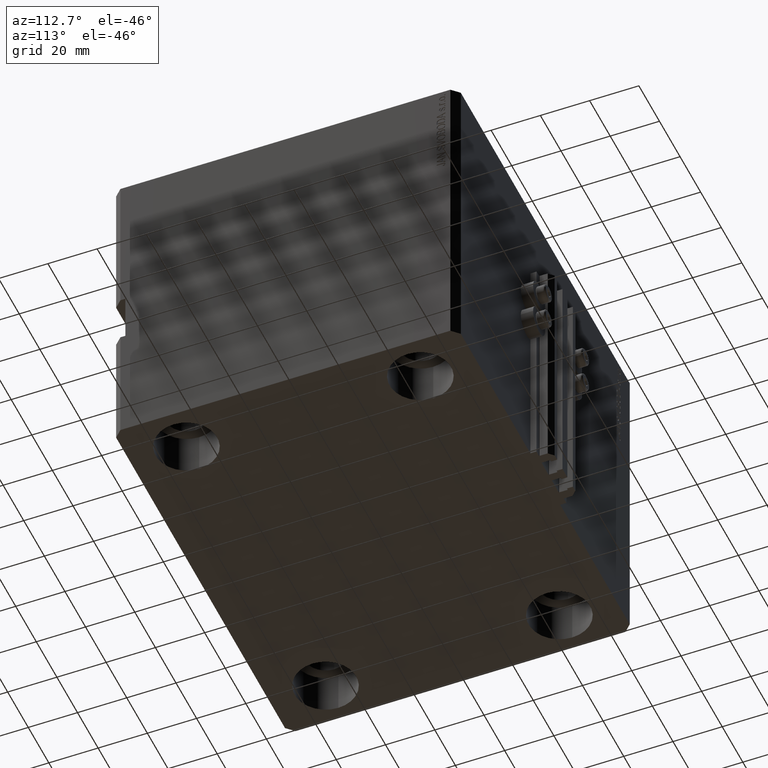
[diagram: clean part render]
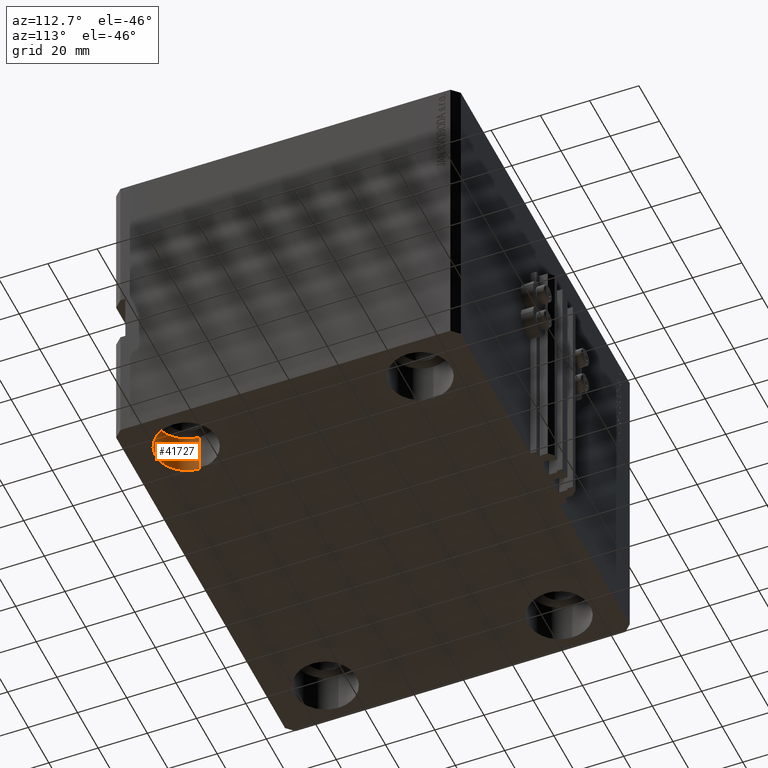
[diagram: same view with one face highlighted and labeled with its STEP entity id]
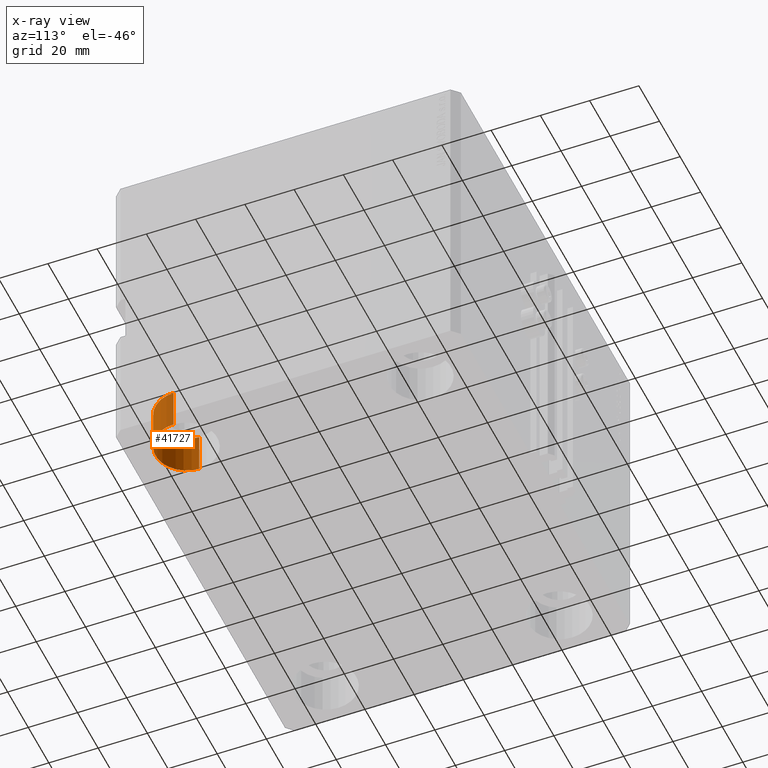
[diagram: x-ray of the same camera — body ghosted, the highlighted face saturated]
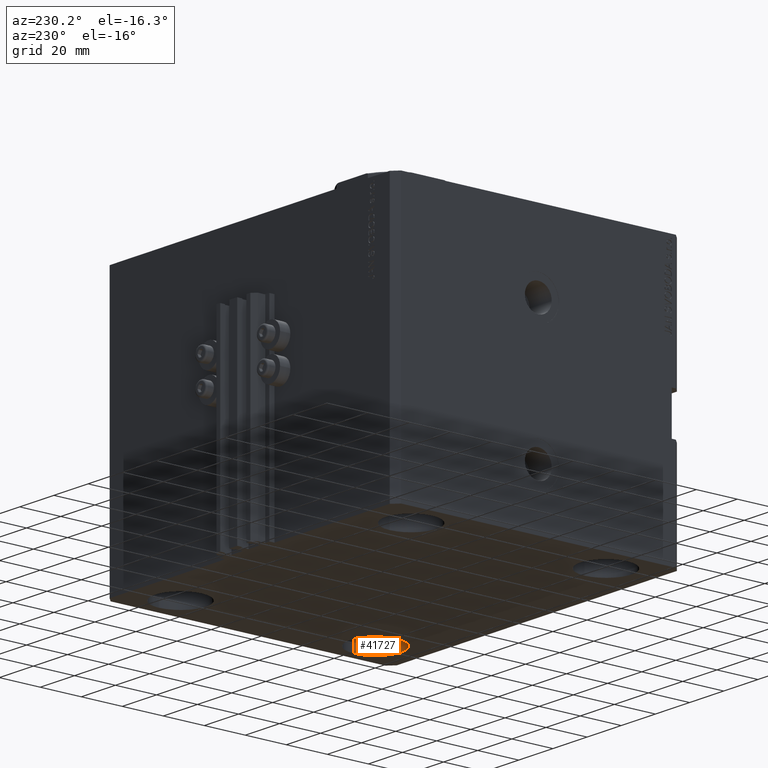
[diagram: same view with one face highlighted and labeled with its STEP entity id]
A machine part, auxiliary view. The second image highlights one B-rep face of the part: STEP entity #41727.
The next image is the same camera in x-ray: the body ghosted, the highlighted face saturated — about 0% of this face is hidden behind the body in this view.
A second angle (auxiliary view) of the same face is appended — the face is thin or edge-on in the first view.
In plain terms, the highlighted cylindrical surface (edge-blend (fillet) strip) has radius 12.5 mm, axis along (-0, -0, -1).
Its self-contained STEP definition (entity closure, byte-faithful):
#2545 = CARTESIAN_POINT ( 'NONE',  ( 67.50000000000000000, -47.50000000000000000, -113.0000000000000000 ) ) ;
#3644 = CIRCLE ( 'NONE', #15394, 12.49999999999999645 ) ;
#6022 = DIRECTION ( 'NONE',  ( 1.000000000000000000, 0.000000000000000000, 0.000000000000000000 ) ) ;
#7028 = DIRECTION ( 'NONE',  ( -0.000000000000000000, -0.000000000000000000, 1.000000000000000000 ) ) ;
#7306 = EDGE_LOOP ( 'NONE', ( #29958, #21367, #45846, #18414 ) ) ;
#8643 = CARTESIAN_POINT ( 'NONE',  ( 55.00000000000000711, -47.50000000000000000, -130.0000000000000000 ) ) ;
#8830 = VERTEX_POINT ( 'NONE', #27813 ) ;
#9528 = CARTESIAN_POINT ( 'NONE',  ( 55.00000000000000711, -47.50000000000000000, -113.0000000000000000 ) ) ;
#9549 = AXIS2_PLACEMENT_3D ( 'NONE', #32709, #35654, #6022 ) ;
#9861 = CARTESIAN_POINT ( 'NONE',  ( 80.00000000000000000, -47.50000000000000000, -113.0000000000000000 ) ) ;
#11954 = EDGE_CURVE ( 'NONE', #41922, #8830, #3644, .T. ) ;
#12726 = DIRECTION ( 'NONE',  ( -0.000000000000000000, -0.000000000000000000, -1.000000000000000000 ) ) ;
#12803 = DIRECTION ( 'NONE',  ( -0.000000000000000000, -0.000000000000000000, -1.000000000000000000 ) ) ;
#13577 = EDGE_CURVE ( 'NONE', #35744, #8830, #20554, .T. ) ;
#15394 = AXIS2_PLACEMENT_3D ( 'NONE', #18299, #7028, #47461 ) ;
#16400 = CARTESIAN_POINT ( 'NONE',  ( 80.00000000000000000, -47.50000000000000000, -113.0000000000000000 ) ) ;
#17494 = DIRECTION ( 'NONE',  ( -0.000000000000000000, -0.000000000000000000, -1.000000000000000000 ) ) ;
#18299 = CARTESIAN_POINT ( 'NONE',  ( 67.50000000000000000, -47.50000000000000000, -130.0000000000000000 ) ) ;
#18414 = ORIENTED_EDGE ( 'NONE', *, *, #26708, .F. ) ;
#20554 = LINE ( 'NONE', #16400, #33318 ) ;
#21367 = ORIENTED_EDGE ( 'NONE', *, *, #13577, .T. ) ;
#22864 = CIRCLE ( 'NONE', #9549, 12.49999999999999645 ) ;
#24917 = VERTEX_POINT ( 'NONE', #9528 ) ;
#26708 = EDGE_CURVE ( 'NONE', #24917, #41922, #42424, .T. ) ;
#27813 = CARTESIAN_POINT ( 'NONE',  ( 80.00000000000000000, -47.50000000000000000, -130.0000000000000000 ) ) ;
#29958 = ORIENTED_EDGE ( 'NONE', *, *, #34251, .T. ) ;
#32428 = DIRECTION ( 'NONE',  ( -1.000000000000000000, 0.000000000000000000, 0.000000000000000000 ) ) ;
#32709 = CARTESIAN_POINT ( 'NONE',  ( 67.50000000000000000, -47.50000000000000000, -113.0000000000000000 ) ) ;
#33318 = VECTOR ( 'NONE', #12726, 1000.000000000000000 ) ;
#34251 = EDGE_CURVE ( 'NONE', #24917, #35744, #22864, .T. ) ;
#35202 = VECTOR ( 'NONE', #12803, 1000.000000000000000 ) ;
#35654 = DIRECTION ( 'NONE',  ( -0.000000000000000000, -0.000000000000000000, 1.000000000000000000 ) ) ;
#35744 = VERTEX_POINT ( 'NONE', #9861 ) ;
#40008 = CYLINDRICAL_SURFACE ( 'NONE', #46555, 12.49999999999999645 ) ;
#41727 = ADVANCED_FACE ( 'NONE', ( #43444 ), #40008, .F. ) ;
#41922 = VERTEX_POINT ( 'NONE', #8643 ) ;
#42424 = LINE ( 'NONE', #46341, #35202 ) ;
#43444 = FACE_OUTER_BOUND ( 'NONE', #7306, .T. ) ;
#45846 = ORIENTED_EDGE ( 'NONE', *, *, #11954, .F. ) ;
#46341 = CARTESIAN_POINT ( 'NONE',  ( 55.00000000000000711, -47.50000000000000000, -113.0000000000000000 ) ) ;
#46555 = AXIS2_PLACEMENT_3D ( 'NONE', #2545, #17494, #32428 ) ;
#47461 = DIRECTION ( 'NONE',  ( 1.000000000000000000, 0.000000000000000000, 0.000000000000000000 ) ) ;